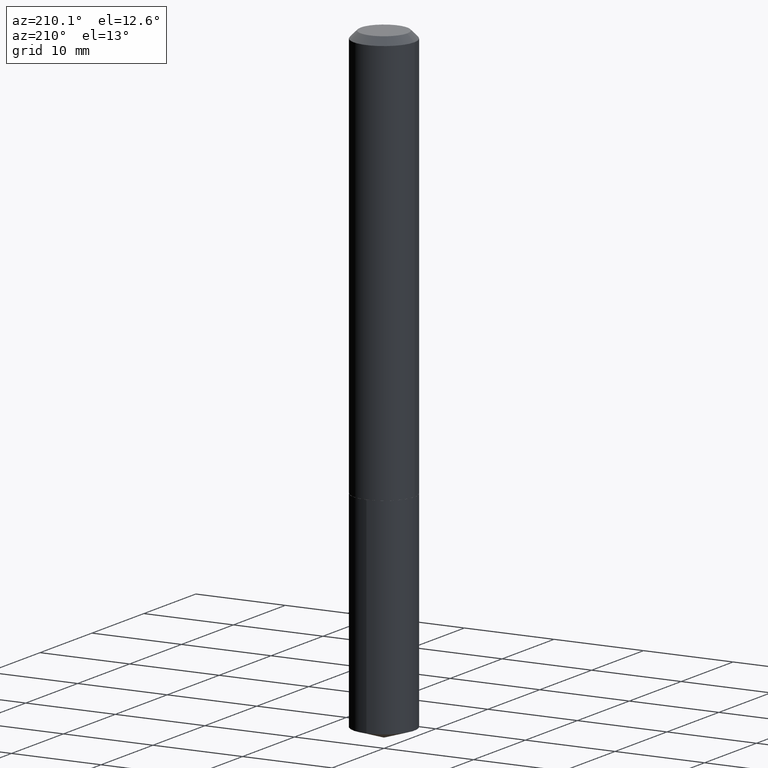
[diagram: clean part render]
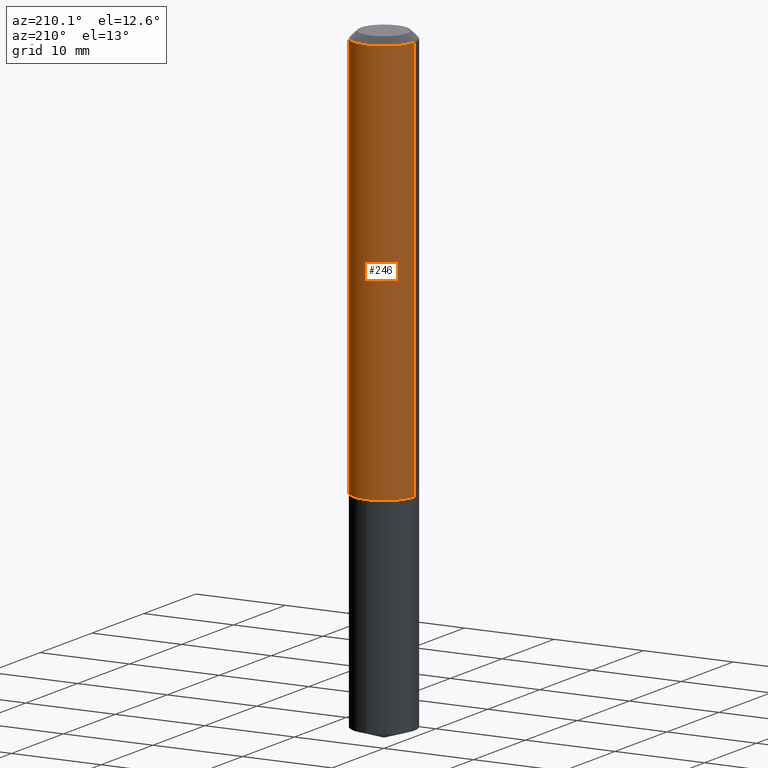
[diagram: same view with one face highlighted and labeled with its STEP entity id]
A machine part, auxiliary view. The second image highlights one B-rep face of the part: STEP entity #246.
In plain terms, the highlighted cylindrical surface (edge-blend (fillet) strip) has radius 3.3998 mm, axis along (-0, 0, 1).
Its self-contained STEP definition (entity closure, byte-faithful):
#4 = DIRECTION ( 'NONE',  ( 1.000000000000000000, -6.982962677686266711E-15, 4.876176775795934672E-29 ) ) ;
#11 = VECTOR ( 'NONE', #118, 39.37007874015748143 ) ;
#12 = CARTESIAN_POINT ( 'NONE',  ( -0.1338499999999999968, -2.250365074803857250E-15, -0.03125000000000022898 ) ) ;
#28 = AXIS2_PLACEMENT_3D ( 'NONE', #180, #386, #243 ) ;
#57 = AXIS2_PLACEMENT_3D ( 'NONE', #188, #122, #369 ) ;
#68 = CARTESIAN_POINT ( 'NONE',  ( 0.000000000000000000, 0.000000000000000000, 0.000000000000000000 ) ) ;
#72 = CIRCLE ( 'NONE', #57, 0.1338499999999999968 ) ;
#91 = CARTESIAN_POINT ( 'NONE',  ( 0.1338500000000001910, -7.228413815806964033E-15, -1.802600000000000646 ) ) ;
#93 = VECTOR ( 'NONE', #306, 39.37007874015748143 ) ;
#99 = FACE_OUTER_BOUND ( 'NONE', #389, .T. ) ;
#101 = CARTESIAN_POINT ( 'NONE',  ( 0.1338499999999999968, -1.043778346247155835E-15, -0.03125000000000022898 ) ) ;
#114 = LINE ( 'NONE', #366, #11 ) ;
#118 = DIRECTION ( 'NONE',  ( -2.445468806185136877E-29, 3.491481338843145188E-15, 1.000000000000000000 ) ) ;
#119 = LINE ( 'NONE', #252, #93 ) ;
#122 = DIRECTION ( 'NONE',  ( -2.445468806185136597E-29, 3.491481338843145583E-15, 1.000000000000000000 ) ) ;
#132 = VERTEX_POINT ( 'NONE', #260 ) ;
#141 = VERTEX_POINT ( 'NONE', #101 ) ;
#147 = VERTEX_POINT ( 'NONE', #12 ) ;
#154 = CYLINDRICAL_SURFACE ( 'NONE', #173, 0.1338500000000001078 ) ;
#173 = AXIS2_PLACEMENT_3D ( 'NONE', #68, #212, #4 ) ;
#180 = CARTESIAN_POINT ( 'NONE',  ( 4.408202070029328442E-29, -6.293744261398656313E-15, -1.802600000000000646 ) ) ;
#188 = CARTESIAN_POINT ( 'NONE',  ( 7.642090019328607041E-31, -1.091087918388490883E-16, -0.03125000000000022898 ) ) ;
#212 = DIRECTION ( 'NONE',  ( -2.445468806185136597E-29, 3.491481338843145583E-15, 1.000000000000000000 ) ) ;
#243 = DIRECTION ( 'NONE',  ( 1.000000000000000000, -6.982962677686265133E-15, 0.000000000000000000 ) ) ;
#246 = ADVANCED_FACE ( 'NONE', ( #99 ), #154, .T. ) ;
#250 = EDGE_CURVE ( 'NONE', #279, #141, #119, .T. ) ;
#252 = CARTESIAN_POINT ( 'NONE',  ( 0.1338500000000001078, -9.346695544083075234E-16, 6.526762614402863887E-30 ) ) ;
#260 = CARTESIAN_POINT ( 'NONE',  ( -0.1338500000000001910, -5.342682809583759673E-15, -1.802600000000000646 ) ) ;
#272 = ORIENTED_EDGE ( 'NONE', *, *, #250, .F. ) ;
#279 = VERTEX_POINT ( 'NONE', #91 ) ;
#296 = ORIENTED_EDGE ( 'NONE', *, *, #371, .T. ) ;
#306 = DIRECTION ( 'NONE',  ( -2.445468806185136877E-29, 3.491481338843145188E-15, 1.000000000000000000 ) ) ;
#318 = CIRCLE ( 'NONE', #28, 0.1338500000000001910 ) ;
#322 = EDGE_CURVE ( 'NONE', #279, #132, #318, .T. ) ;
#341 = ORIENTED_EDGE ( 'NONE', *, *, #322, .T. ) ;
#361 = ORIENTED_EDGE ( 'NONE', *, *, #383, .F. ) ;
#366 = CARTESIAN_POINT ( 'NONE',  ( -0.1338500000000001078, 9.510614518148948646E-16, -6.583994618306196527E-30 ) ) ;
#369 = DIRECTION ( 'NONE',  ( 1.000000000000000000, -6.982962677686266711E-15, 0.000000000000000000 ) ) ;
#371 = EDGE_CURVE ( 'NONE', #132, #147, #114, .T. ) ;
#383 = EDGE_CURVE ( 'NONE', #141, #147, #72, .T. ) ;
#386 = DIRECTION ( 'NONE',  ( -2.445468806185136597E-29, 3.491481338843145583E-15, 1.000000000000000000 ) ) ;
#389 = EDGE_LOOP ( 'NONE', ( #341, #296, #361, #272 ) ) ;